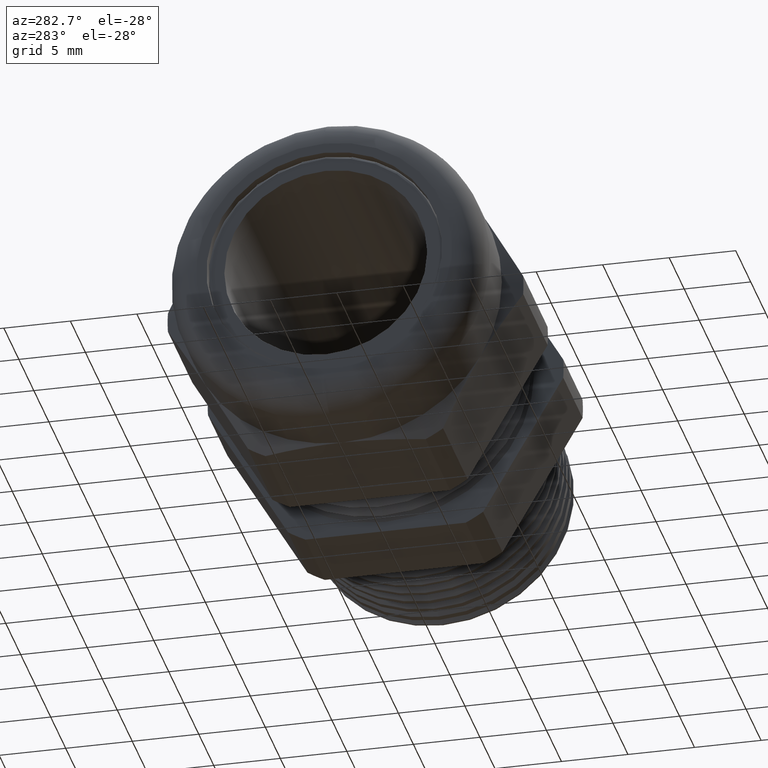
[diagram: clean part render]
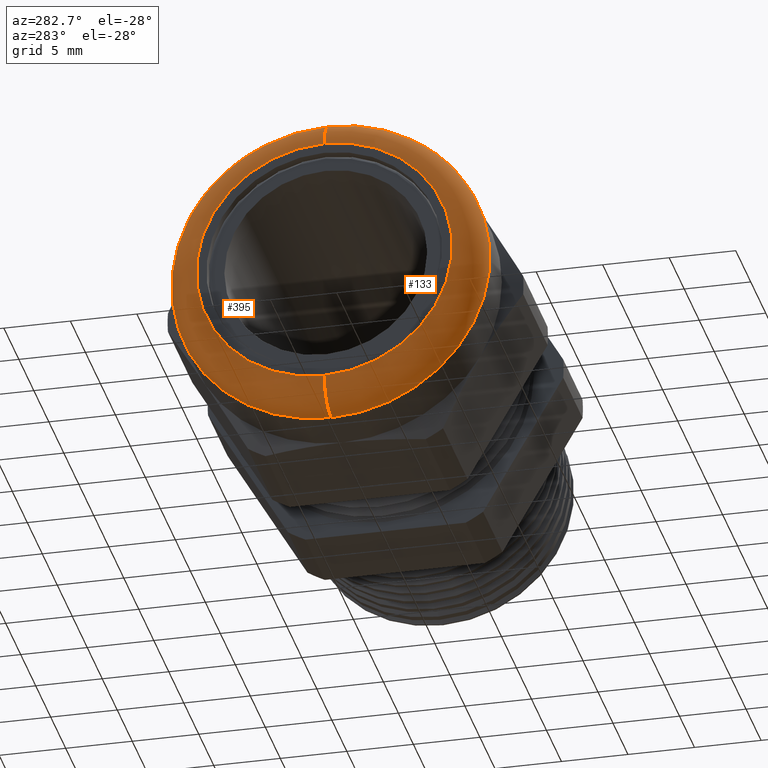
[diagram: same view with one multi-face feature highlighted, each face labeled with its STEP entity id]
A machine part, auxiliary view. The highlighted faces form ONE feature: a constant-radius fillet chain: 2 tangent blend faces with common blend radius 2.3216 mm. The faces share edges in the B-rep.
Their STEP definitions:
[1] entity #133 (Torus):
#17 = EDGE_CURVE ( 'NONE', #400, #399, #1004, .T. ) ;
#114 = EDGE_CURVE ( 'NONE', #403, #468, #1090, .T. ) ;
#133 = ADVANCED_FACE ( 'NONE', ( #1118 ), #1117, .T. ) ;
#134 = EDGE_LOOP ( 'NONE', ( #135, #136, #137, #138 ) ) ;
#135 = ORIENTED_EDGE ( 'NONE', *, *, #402, .F. ) ;
#136 = ORIENTED_EDGE ( 'NONE', *, *, #17, .F. ) ;
#137 = ORIENTED_EDGE ( 'NONE', *, *, #388, .T. ) ;
#138 = ORIENTED_EDGE ( 'NONE', *, *, #114, .F. ) ;
#388 = EDGE_CURVE ( 'NONE', #400, #468, #1512, .T. ) ;
#399 = VERTEX_POINT ( 'NONE', #1550 ) ;
#400 = VERTEX_POINT ( 'NONE', #1549 ) ;
#402 = EDGE_CURVE ( 'NONE', #399, #403, #1548, .T. ) ;
#403 = VERTEX_POINT ( 'NONE', #1543 ) ;
#468 = VERTEX_POINT ( 'NONE', #1656 ) ;
#1000 = DIRECTION ( 'NONE',  ( 0.0000000000000000000, 0.0000000000000000000, -1.000000000000000000 ) ) ;
#1001 = DIRECTION ( 'NONE',  ( -1.000000000000000000, 0.0000000000000000000, 0.0000000000000000000 ) ) ;
#1002 = CARTESIAN_POINT ( 'NONE',  ( -1.060000000000000100, 0.0000000000000000000, 0.0000000000000000000 ) ) ;
#1003 = AXIS2_PLACEMENT_3D ( 'NONE', #1002, #1001, #1000 ) ;
#1004 = CIRCLE ( 'NONE', #1003, 0.3785999999999997700 ) ;
#1086 = DIRECTION ( 'NONE',  ( 0.0000000000000000000, 0.0000000000000000000, -1.000000000000000000 ) ) ;
#1087 = DIRECTION ( 'NONE',  ( 1.000000000000000000, 0.0000000000000000000, 0.0000000000000000000 ) ) ;
#1088 = CARTESIAN_POINT ( 'NONE',  ( -0.9686000000000000200, 0.0000000000000000000, 0.0000000000000000000 ) ) ;
#1089 = AXIS2_PLACEMENT_3D ( 'NONE', #1088, #1087, #1086 ) ;
#1090 = CIRCLE ( 'NONE', #1089, 0.4699999999999997500 ) ;
#1114 = DIRECTION ( 'NONE',  ( 0.0000000000000000000, 0.0000000000000000000, -1.000000000000000000 ) ) ;
#1115 = DIRECTION ( 'NONE',  ( 1.000000000000000000, 0.0000000000000000000, 0.0000000000000000000 ) ) ;
#1116 = AXIS2_PLACEMENT_3D ( 'NONE', #1123, #1115, #1114 ) ;
#1117 = TOROIDAL_SURFACE ( 'NONE', #1116, 0.3785999999999997700, 0.09139999999999999500 ) ;
#1118 = FACE_OUTER_BOUND ( 'NONE', #134, .T. ) ;
#1123 = CARTESIAN_POINT ( 'NONE',  ( -0.9686000000000000200, 0.0000000000000000000, 0.0000000000000000000 ) ) ;
#1508 = DIRECTION ( 'NONE',  ( 0.0000000000000000000, 0.0000000000000000000, -1.000000000000000000 ) ) ;
#1509 = DIRECTION ( 'NONE',  ( 0.0000000000000000000, -1.000000000000000000, 0.0000000000000000000 ) ) ;
#1510 = CARTESIAN_POINT ( 'NONE',  ( -0.9686000000000000200, 0.0000000000000000000, -0.3785999999999997700 ) ) ;
#1511 = AXIS2_PLACEMENT_3D ( 'NONE', #1510, #1509, #1508 ) ;
#1512 = CIRCLE ( 'NONE', #1511, 0.09140000000000000900 ) ;
#1543 = CARTESIAN_POINT ( 'NONE',  ( -0.9686000000000000200, 0.0000000000000000000, 0.4699999999999997500 ) ) ;
#1544 = DIRECTION ( 'NONE',  ( 0.0000000000000000000, 1.224646799147353000E-016, 1.000000000000000000 ) ) ;
#1545 = DIRECTION ( 'NONE',  ( 0.0000000000000000000, 1.000000000000000000, -1.224646799147353200E-016 ) ) ;
#1546 = CARTESIAN_POINT ( 'NONE',  ( -0.9686000000000000200, 4.636512781571876600E-017, 0.3785999999999997700 ) ) ;
#1547 = AXIS2_PLACEMENT_3D ( 'NONE', #1546, #1545, #1544 ) ;
#1548 = CIRCLE ( 'NONE', #1547, 0.09140000000000000900 ) ;
#1549 = CARTESIAN_POINT ( 'NONE',  ( -1.060000000000000100, 0.0000000000000000000, -0.3785999999999997700 ) ) ;
#1550 = CARTESIAN_POINT ( 'NONE',  ( -1.060000000000000100, 5.196176368782216900E-017, 0.3785999999999997700 ) ) ;
#1656 = CARTESIAN_POINT ( 'NONE',  ( -0.9686000000000000200, 5.755839955992557200E-017, -0.4699999999999997500 ) ) ;
[2] entity #395 (Torus):
#387 = ORIENTED_EDGE ( 'NONE', *, *, #388, .F. ) ;
#388 = EDGE_CURVE ( 'NONE', #400, #468, #1512, .T. ) ;
#395 = ADVANCED_FACE ( 'NONE', ( #1497 ), #1495, .T. ) ;
#396 = EDGE_LOOP ( 'NONE', ( #397, #401, #404, #387 ) ) ;
#397 = ORIENTED_EDGE ( 'NONE', *, *, #398, .F. ) ;
#398 = EDGE_CURVE ( 'NONE', #399, #400, #1555, .T. ) ;
#399 = VERTEX_POINT ( 'NONE', #1550 ) ;
#400 = VERTEX_POINT ( 'NONE', #1549 ) ;
#401 = ORIENTED_EDGE ( 'NONE', *, *, #402, .T. ) ;
#402 = EDGE_CURVE ( 'NONE', #399, #403, #1548, .T. ) ;
#403 = VERTEX_POINT ( 'NONE', #1543 ) ;
#404 = ORIENTED_EDGE ( 'NONE', *, *, #467, .F. ) ;
#467 = EDGE_CURVE ( 'NONE', #468, #403, #1661, .T. ) ;
#468 = VERTEX_POINT ( 'NONE', #1656 ) ;
#1495 = TOROIDAL_SURFACE ( 'NONE', #1558, 0.3785999999999997700, 0.09139999999999999500 ) ;
#1496 = CARTESIAN_POINT ( 'NONE',  ( -0.9686000000000000200, 0.0000000000000000000, 0.0000000000000000000 ) ) ;
#1497 = FACE_OUTER_BOUND ( 'NONE', #396, .T. ) ;
#1508 = DIRECTION ( 'NONE',  ( 0.0000000000000000000, 0.0000000000000000000, -1.000000000000000000 ) ) ;
#1509 = DIRECTION ( 'NONE',  ( 0.0000000000000000000, -1.000000000000000000, 0.0000000000000000000 ) ) ;
#1510 = CARTESIAN_POINT ( 'NONE',  ( -0.9686000000000000200, 0.0000000000000000000, -0.3785999999999997700 ) ) ;
#1511 = AXIS2_PLACEMENT_3D ( 'NONE', #1510, #1509, #1508 ) ;
#1512 = CIRCLE ( 'NONE', #1511, 0.09140000000000000900 ) ;
#1543 = CARTESIAN_POINT ( 'NONE',  ( -0.9686000000000000200, 0.0000000000000000000, 0.4699999999999997500 ) ) ;
#1544 = DIRECTION ( 'NONE',  ( 0.0000000000000000000, 1.224646799147353000E-016, 1.000000000000000000 ) ) ;
#1545 = DIRECTION ( 'NONE',  ( 0.0000000000000000000, 1.000000000000000000, -1.224646799147353200E-016 ) ) ;
#1546 = CARTESIAN_POINT ( 'NONE',  ( -0.9686000000000000200, 4.636512781571876600E-017, 0.3785999999999997700 ) ) ;
#1547 = AXIS2_PLACEMENT_3D ( 'NONE', #1546, #1545, #1544 ) ;
#1548 = CIRCLE ( 'NONE', #1547, 0.09140000000000000900 ) ;
#1549 = CARTESIAN_POINT ( 'NONE',  ( -1.060000000000000100, 0.0000000000000000000, -0.3785999999999997700 ) ) ;
#1550 = CARTESIAN_POINT ( 'NONE',  ( -1.060000000000000100, 5.196176368782216900E-017, 0.3785999999999997700 ) ) ;
#1551 = DIRECTION ( 'NONE',  ( 0.0000000000000000000, 0.0000000000000000000, -1.000000000000000000 ) ) ;
#1552 = DIRECTION ( 'NONE',  ( -1.000000000000000000, 0.0000000000000000000, 0.0000000000000000000 ) ) ;
#1553 = CARTESIAN_POINT ( 'NONE',  ( -1.060000000000000100, 0.0000000000000000000, 0.0000000000000000000 ) ) ;
#1554 = AXIS2_PLACEMENT_3D ( 'NONE', #1553, #1552, #1551 ) ;
#1555 = CIRCLE ( 'NONE', #1554, 0.3785999999999997700 ) ;
#1556 = DIRECTION ( 'NONE',  ( 0.0000000000000000000, 0.0000000000000000000, -1.000000000000000000 ) ) ;
#1557 = DIRECTION ( 'NONE',  ( 1.000000000000000000, 0.0000000000000000000, 0.0000000000000000000 ) ) ;
#1558 = AXIS2_PLACEMENT_3D ( 'NONE', #1496, #1557, #1556 ) ;
#1656 = CARTESIAN_POINT ( 'NONE',  ( -0.9686000000000000200, 5.755839955992557200E-017, -0.4699999999999997500 ) ) ;
#1657 = DIRECTION ( 'NONE',  ( 0.0000000000000000000, 0.0000000000000000000, -1.000000000000000000 ) ) ;
#1658 = DIRECTION ( 'NONE',  ( 1.000000000000000000, 0.0000000000000000000, 0.0000000000000000000 ) ) ;
#1659 = CARTESIAN_POINT ( 'NONE',  ( -0.9686000000000000200, 0.0000000000000000000, 0.0000000000000000000 ) ) ;
#1660 = AXIS2_PLACEMENT_3D ( 'NONE', #1659, #1658, #1657 ) ;
#1661 = CIRCLE ( 'NONE', #1660, 0.4699999999999997500 ) ;